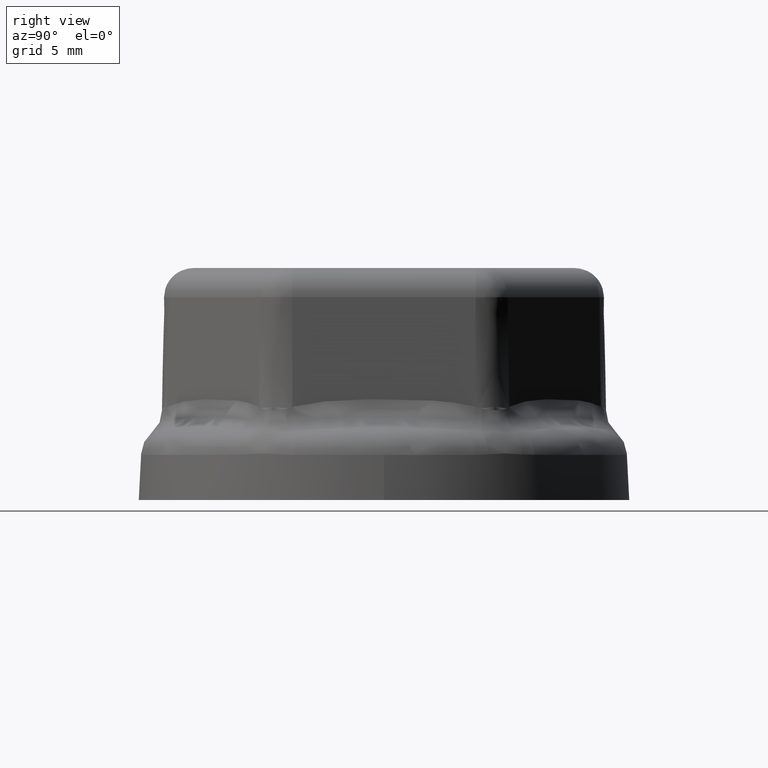
[diagram: clean part render]
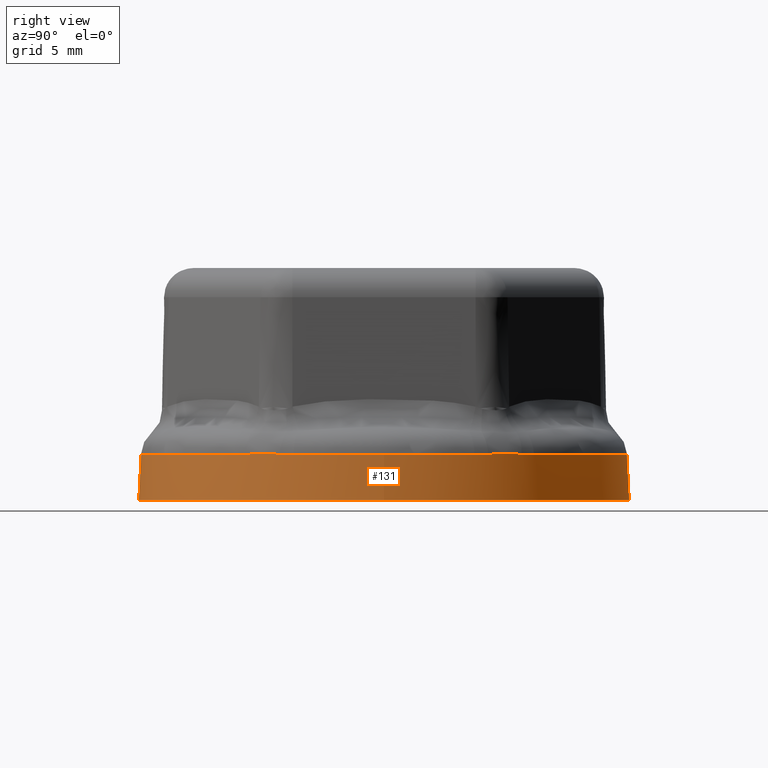
[diagram: same view with one face highlighted and labeled with its STEP entity id]
A machine part, right view. The second image highlights one B-rep face of the part: STEP entity #131.
In plain terms, the highlighted conical surface has half-angle 3 deg.
Its self-contained STEP definition (entity closure, byte-faithful):
#131 = ADVANCED_FACE( '', ( #320, #321 ), #322, .T. );
#320 = FACE_BOUND( '', #2273, .T. );
#321 = FACE_OUTER_BOUND( '', #2274, .T. );
#322 = CONICAL_SURFACE( '', #2275, 12.3652971144227, 0.0523598775598299 );
#2273 = EDGE_LOOP( '', ( #5702, #5703, #5704, #5705, #5706, #5707, #5708, #5709, #5710, #5711, #5712, #5713, #5714, #5715, #5716, #5717, #5718, #5719, #5720, #5721, #5722, #5723, #5724, #5725 ) );
#2274 = EDGE_LOOP( '', ( #5726 ) );
#2275 = AXIS2_PLACEMENT_3D( '', #5727, #5728, #5729 );
#5702 = ORIENTED_EDGE( '', *, *, #6277, .T. );
#5703 = ORIENTED_EDGE( '', *, *, #6278, .T. );
#5704 = ORIENTED_EDGE( '', *, *, #6279, .T. );
#5705 = ORIENTED_EDGE( '', *, *, #6280, .T. );
#5706 = ORIENTED_EDGE( '', *, *, #6281, .T. );
#5707 = ORIENTED_EDGE( '', *, *, #6282, .T. );
#5708 = ORIENTED_EDGE( '', *, *, #6283, .T. );
#5709 = ORIENTED_EDGE( '', *, *, #6284, .T. );
#5710 = ORIENTED_EDGE( '', *, *, #6285, .T. );
#5711 = ORIENTED_EDGE( '', *, *, #6264, .T. );
#5712 = ORIENTED_EDGE( '', *, *, #6276, .T. );
#5713 = ORIENTED_EDGE( '', *, *, #6286, .T. );
#5714 = ORIENTED_EDGE( '', *, *, #6287, .T. );
#5715 = ORIENTED_EDGE( '', *, *, #6288, .T. );
#5716 = ORIENTED_EDGE( '', *, *, #6273, .T. );
#5717 = ORIENTED_EDGE( '', *, *, #6289, .T. );
#5718 = ORIENTED_EDGE( '', *, *, #6290, .T. );
#5719 = ORIENTED_EDGE( '', *, *, #6291, .T. );
#5720 = ORIENTED_EDGE( '', *, *, #6292, .T. );
#5721 = ORIENTED_EDGE( '', *, *, #6293, .T. );
#5722 = ORIENTED_EDGE( '', *, *, #6294, .T. );
#5723 = ORIENTED_EDGE( '', *, *, #6295, .T. );
#5724 = ORIENTED_EDGE( '', *, *, #6296, .T. );
#5725 = ORIENTED_EDGE( '', *, *, #6297, .T. );
#5726 = ORIENTED_EDGE( '', *, *, #6298, .T. );
#5727 = CARTESIAN_POINT( '', ( 0.000000000000000, 0.000000000000000, 0.000000000000000 ) );
#5728 = DIRECTION( '', ( 0.000000000000000, 0.000000000000000, -1.00000000000000 ) );
#5729 = DIRECTION( '', ( 1.00000000000000, 0.000000000000000, 0.000000000000000 ) );
#6264 = EDGE_CURVE( '', #6677, #6675, #6678, .T. );
#6273 = EDGE_CURVE( '', #6689, #6691, #6693, .T. );
#6276 = EDGE_CURVE( '', #6675, #6696, #6698, .T. );
#6277 = EDGE_CURVE( '', #6699, #6700, #6701, .T. );
#6278 = EDGE_CURVE( '', #6700, #6702, #6703, .T. );
#6279 = EDGE_CURVE( '', #6702, #6704, #6705, .T. );
#6280 = EDGE_CURVE( '', #6704, #6706, #6707, .T. );
#6281 = EDGE_CURVE( '', #6706, #6708, #6709, .T. );
#6282 = EDGE_CURVE( '', #6708, #6710, #6711, .T. );
#6283 = EDGE_CURVE( '', #6710, #6712, #6713, .T. );
#6284 = EDGE_CURVE( '', #6712, #6714, #6715, .T. );
#6285 = EDGE_CURVE( '', #6714, #6677, #6716, .T. );
#6286 = EDGE_CURVE( '', #6696, #6717, #6718, .T. );
#6287 = EDGE_CURVE( '', #6717, #6719, #6720, .T. );
#6288 = EDGE_CURVE( '', #6719, #6689, #6721, .T. );
#6289 = EDGE_CURVE( '', #6691, #6722, #6723, .T. );
#6290 = EDGE_CURVE( '', #6722, #6724, #6725, .T. );
#6291 = EDGE_CURVE( '', #6724, #6726, #6727, .T. );
#6292 = EDGE_CURVE( '', #6726, #6728, #6729, .T. );
#6293 = EDGE_CURVE( '', #6728, #6730, #6731, .T. );
#6294 = EDGE_CURVE( '', #6730, #6732, #6733, .T. );
#6295 = EDGE_CURVE( '', #6732, #6734, #6735, .T. );
#6296 = EDGE_CURVE( '', #6734, #6736, #6737, .T. );
#6297 = EDGE_CURVE( '', #6736, #6699, #6738, .T. );
#6298 = EDGE_CURVE( '', #6739, #6739, #6740, .T. );
#6675 = VERTEX_POINT( '', #7895 );
#6677 = VERTEX_POINT( '', #7897 );
#6678 = B_SPLINE_CURVE_WITH_KNOTS( '', 3, ( #7898, #7899, #7900, #7901, #7902, #7903 ), .UNSPECIFIED., .F., .F., ( 4, 2, 4 ), ( 0.000000000000000, 0.000382240446810230, 0.000764480893620461 ), .UNSPECIFIED. );
#6689 = VERTEX_POINT( '', #7952 );
#6691 = VERTEX_POINT( '', #7954 );
#6693 = B_SPLINE_CURVE_WITH_KNOTS( '', 3, ( #7956, #7957, #7958, #7959, #7960, #7961, #7962, #7963, #7964, #7965, #7966, #7967, #7968, #7969, #7970, #7971, #7972 ), .UNSPECIFIED., .F., .F., ( 4, 2, 2, 2, 1, 2, 2, 2, 4 ), ( 0.000000000000000, 0.000242599445496883, 0.000485198890993766, 0.000727798336490649, 0.000970397781987532, 0.00121299722748441, 0.00145559667298130, 0.00169819611847818, 0.00194079556397506 ), .UNSPECIFIED. );
#6696 = VERTEX_POINT( '', #7993 );
#6698 = B_SPLINE_CURVE_WITH_KNOTS( '', 3, ( #7995, #7996, #7997, #7998, #7999, #8000, #8001, #8002, #8003, #8004, #8005, #8006, #8007, #8008, #8009, #8010, #8011 ), .UNSPECIFIED., .F., .F., ( 4, 2, 2, 2, 1, 2, 2, 2, 4 ), ( 0.000000000000000, 0.000242599445497159, 0.000485198890994317, 0.000727798336491475, 0.000970397781988634, 0.00121299722748579, 0.00145559667298295, 0.00169819611848011, 0.00194079556397727 ), .UNSPECIFIED. );
#6699 = VERTEX_POINT( '', #8012 );
#6700 = VERTEX_POINT( '', #8013 );
#6701 = CIRCLE( '', #8014, 12.2458857831350 );
#6702 = VERTEX_POINT( '', #8015 );
#6703 = B_SPLINE_CURVE_WITH_KNOTS( '', 3, ( #8016, #8017, #8018, #8019, #8020, #8021 ), .UNSPECIFIED., .F., .F., ( 4, 2, 4 ), ( 0.000000000000000, 0.000382240446810823, 0.000764480893621646 ), .UNSPECIFIED. );
#6704 = VERTEX_POINT( '', #8022 );
#6705 = B_SPLINE_CURVE_WITH_KNOTS( '', 3, ( #8023, #8024, #8025, #8026, #8027, #8028, #8029, #8030, #8031, #8032, #8033, #8034, #8035, #8036, #8037, #8038, #8039 ), .UNSPECIFIED., .F., .F., ( 4, 2, 2, 2, 1, 2, 2, 2, 4 ), ( 0.000000000000000, 0.000242599445496991, 0.000485198890993981, 0.000727798336490972, 0.000970397781987962, 0.00121299722748495, 0.00145559667298194, 0.00169819611847893, 0.00194079556397592 ), .UNSPECIFIED. );
#6706 = VERTEX_POINT( '', #8040 );
#6707 = B_SPLINE_CURVE_WITH_KNOTS( '', 3, ( #8041, #8042, #8043, #8044, #8045, #8046, #8047, #8048 ), .UNSPECIFIED., .F., .F., ( 4, 2, 2, 4 ), ( 0.000000000000000, 0.000191224081581414, 0.000382448163162828, 0.000764896326325653 ), .UNSPECIFIED. );
#6708 = VERTEX_POINT( '', #8049 );
#6709 = CIRCLE( '', #8050, 12.2458857831350 );
#6710 = VERTEX_POINT( '', #8051 );
#6711 = B_SPLINE_CURVE_WITH_KNOTS( '', 3, ( #8052, #8053, #8054, #8055, #8056, #8057 ), .UNSPECIFIED., .F., .F., ( 4, 2, 4 ), ( 0.000000000000000, 0.000382240446811210, 0.000764480893622419 ), .UNSPECIFIED. );
#6712 = VERTEX_POINT( '', #8058 );
#6713 = B_SPLINE_CURVE_WITH_KNOTS( '', 3, ( #8059, #8060, #8061, #8062, #8063, #8064, #8065, #8066, #8067, #8068, #8069, #8070, #8071, #8072, #8073, #8074, #8075 ), .UNSPECIFIED., .F., .F., ( 4, 2, 2, 2, 1, 2, 2, 2, 4 ), ( 0.000000000000000, 0.000242599445496902, 0.000485198890993805, 0.000727798336490707, 0.000970397781987609, 0.00121299722748451, 0.00145559667298141, 0.00169819611847832, 0.00194079556397522 ), .UNSPECIFIED. );
#6714 = VERTEX_POINT( '', #8076 );
#6715 = B_SPLINE_CURVE_WITH_KNOTS( '', 3, ( #8077, #8078, #8079, #8080, #8081, #8082, #8083, #8084 ), .UNSPECIFIED., .F., .F., ( 4, 2, 2, 4 ), ( 0.000000000000000, 0.000191224081581397, 0.000382448163162794, 0.000764896326325594 ), .UNSPECIFIED. );
#6716 = CIRCLE( '', #8085, 12.2458857831350 );
#6717 = VERTEX_POINT( '', #8086 );
#6718 = B_SPLINE_CURVE_WITH_KNOTS( '', 3, ( #8087, #8088, #8089, #8090, #8091, #8092, #8093, #8094 ), .UNSPECIFIED., .F., .F., ( 4, 2, 2, 4 ), ( 0.000000000000000, 0.000191224081581387, 0.000382448163162774, 0.000764896326325548 ), .UNSPECIFIED. );
#6719 = VERTEX_POINT( '', #8095 );
#6720 = CIRCLE( '', #8096, 12.2458857831350 );
#6721 = B_SPLINE_CURVE_WITH_KNOTS( '', 3, ( #8097, #8098, #8099, #8100, #8101, #8102 ), .UNSPECIFIED., .F., .F., ( 4, 2, 4 ), ( 0.000000000000000, 0.000382240446811213, 0.000764480893622426 ), .UNSPECIFIED. );
#6722 = VERTEX_POINT( '', #8103 );
#6723 = B_SPLINE_CURVE_WITH_KNOTS( '', 3, ( #8104, #8105, #8106, #8107, #8108, #8109, #8110, #8111 ), .UNSPECIFIED., .F., .F., ( 4, 2, 2, 4 ), ( 0.000000000000000, 0.000191224081581448, 0.000382448163162897, 0.000764896326325796 ), .UNSPECIFIED. );
#6724 = VERTEX_POINT( '', #8112 );
#6725 = CIRCLE( '', #8113, 12.2458857831350 );
#6726 = VERTEX_POINT( '', #8114 );
#6727 = B_SPLINE_CURVE_WITH_KNOTS( '', 3, ( #8115, #8116, #8117, #8118, #8119, #8120 ), .UNSPECIFIED., .F., .F., ( 4, 2, 4 ), ( 0.000000000000000, 0.000382240446811016, 0.000764480893622032 ), .UNSPECIFIED. );
#6728 = VERTEX_POINT( '', #8121 );
#6729 = B_SPLINE_CURVE_WITH_KNOTS( '', 3, ( #8122, #8123, #8124, #8125, #8126, #8127, #8128, #8129, #8130, #8131, #8132, #8133, #8134, #8135, #8136, #8137, #8138 ), .UNSPECIFIED., .F., .F., ( 4, 2, 2, 2, 1, 2, 2, 2, 4 ), ( 0.000000000000000, 0.000242599445496940, 0.000485198890993881, 0.000727798336490821, 0.000970397781987761, 0.00121299722748470, 0.00145559667298164, 0.00169819611847858, 0.00194079556397552 ), .UNSPECIFIED. );
#6730 = VERTEX_POINT( '', #8139 );
#6731 = B_SPLINE_CURVE_WITH_KNOTS( '', 3, ( #8140, #8141, #8142, #8143, #8144, #8145, #8146, #8147 ), .UNSPECIFIED., .F., .F., ( 4, 2, 2, 4 ), ( 0.000000000000000, 0.000191224081581433, 0.000382448163162865, 0.000764896326325727 ), .UNSPECIFIED. );
#6732 = VERTEX_POINT( '', #8148 );
#6733 = CIRCLE( '', #8149, 12.2458857831350 );
#6734 = VERTEX_POINT( '', #8150 );
#6735 = B_SPLINE_CURVE_WITH_KNOTS( '', 3, ( #8151, #8152, #8153, #8154, #8155, #8156 ), .UNSPECIFIED., .F., .F., ( 4, 2, 4 ), ( 0.000000000000000, 0.000382240446810624, 0.000764480893621248 ), .UNSPECIFIED. );
#6736 = VERTEX_POINT( '', #8157 );
#6737 = B_SPLINE_CURVE_WITH_KNOTS( '', 3, ( #8158, #8159, #8160, #8161, #8162, #8163, #8164, #8165, #8166, #8167, #8168, #8169, #8170, #8171, #8172, #8173, #8174 ), .UNSPECIFIED., .F., .F., ( 4, 2, 2, 2, 1, 2, 2, 2, 4 ), ( 0.000000000000000, 0.000242599445497063, 0.000485198890994125, 0.000727798336491188, 0.000970397781988251, 0.00121299722748531, 0.00145559667298238, 0.00169819611847944, 0.00194079556397650 ), .UNSPECIFIED. );
#6738 = B_SPLINE_CURVE_WITH_KNOTS( '', 3, ( #8175, #8176, #8177, #8178, #8179, #8180, #8181, #8182 ), .UNSPECIFIED., .F., .F., ( 4, 2, 2, 4 ), ( 0.000000000000000, 0.000191224081581383, 0.000382448163162767, 0.000764896326325533 ), .UNSPECIFIED. );
#6739 = VERTEX_POINT( '', #8183 );
#6740 = CIRCLE( '', #8184, 12.3652971144227 );
#7895 = CARTESIAN_POINT( '', ( 0.970397783726895, -12.2060850970694, 2.30307234693433 ) );
#7897 = CARTESIAN_POINT( '', ( 1.72996133434143, -12.1230752037291, 2.27850393436441 ) );
#7898 = CARTESIAN_POINT( '', ( 1.72996133434143, -12.1230752037291, 2.27850393436441 ) );
#7899 = CARTESIAN_POINT( '', ( 1.60369217465793, -12.1410937972214, 2.27850393436442 ) );
#7900 = CARTESIAN_POINT( '', ( 1.47725177163524, -12.1570325384955, 2.28023697720637 ) );
#7901 = CARTESIAN_POINT( '', ( 1.22405449743470, -12.1847170284477, 2.28808601563968 ) );
#7902 = CARTESIAN_POINT( '', ( 1.09729752388611, -12.1964629550953, 2.29419836516929 ) );
#7903 = CARTESIAN_POINT( '', ( 0.970397779880525, -12.2060850973610, 2.30307234720331 ) );
#7952 = CARTESIAN_POINT( '', ( -10.0855808829544, -6.94343168101671, 2.30307234693447 ) );
#7954 = CARTESIAN_POINT( '', ( -11.0559786651701, -5.26265341919389, 2.30307234717746 ) );
#7956 = CARTESIAN_POINT( '', ( -10.0855808829544, -6.94343168101671, 2.30307234693447 ) );
#7957 = CARTESIAN_POINT( '', ( -10.1313243157113, -6.87646509412377, 2.30872726524088 ) );
#7958 = CARTESIAN_POINT( '', ( -10.1763483262438, -6.80908314861595, 2.31481177655399 ) );
#7959 = CARTESIAN_POINT( '', ( -10.2650233237330, -6.67352654206921, 2.32651434985899 ) );
#7960 = CARTESIAN_POINT( '', ( -10.3086746322046, -6.60535206665708, 2.33212512571195 ) );
#7961 = CARTESIAN_POINT( '', ( -10.3946626097138, -6.46824410840162, 2.34167594635807 ) );
#7962 = CARTESIAN_POINT( '', ( -10.4369995935141, -6.39931080728672, 2.34560886820252 ) );
#7963 = CARTESIAN_POINT( '', ( -10.5203994019893, -6.26070856894294, 2.35095806456817 ) );
#7964 = CARTESIAN_POINT( '', ( -10.6025254268497, -6.12137091128633, 2.35378211098088 ) );
#7965 = CARTESIAN_POINT( '', ( -10.6821323656900, -5.98057885863804, 2.35095806464757 ) );
#7966 = CARTESIAN_POINT( '', ( -10.7604655209159, -5.83905138667716, 2.34560886835284 ) );
#7967 = CARTESIAN_POINT( '', ( -10.7989950189664, -5.76791983263985, 2.34167594653957 ) );
#7968 = CARTESIAN_POINT( '', ( -10.8747400051595, -5.62489808059130, 2.33212512594067 ) );
#7969 = CARTESIAN_POINT( '', ( -10.9119551785394, -5.55300770085164, 2.32651435010372 ) );
#7970 = CARTESIAN_POINT( '', ( -10.9850131447541, -5.40843459709535, 2.31481177681200 ) );
#7971 = CARTESIAN_POINT( '', ( -11.0208556177666, -5.33575168399014, 2.30872726521161 ) );
#7972 = CARTESIAN_POINT( '', ( -11.0559786668398, -5.26265341571890, 2.30307234690863 ) );
#7993 = CARTESIAN_POINT( '', ( -0.970397780250372, -12.2060850973330, 2.30307234717744 ) );
#7995 = CARTESIAN_POINT( '', ( 0.970397783726895, -12.2060850970694, 2.30307234693433 ) );
#7996 = CARTESIAN_POINT( '', ( 0.889531301894346, -12.2122167784467, 2.30872726524067 ) );
#7997 = CARTESIAN_POINT( '', ( 0.808664820061802, -12.2175177425942, 2.31481177655370 ) );
#7998 = CARTESIAN_POINT( '', ( 0.646931856396743, -12.2265342398271, 2.32651434985860 ) );
#7999 = CARTESIAN_POINT( '', ( 0.566065374564229, -12.2302501441659, 2.33212512571153 ) );
#8000 = CARTESIAN_POINT( '', ( 0.404332410899244, -12.2361639379812, 2.34167594635765 ) );
#8001 = CARTESIAN_POINT( '', ( 0.323465929066773, -12.2383621909144, 2.34560886820211 ) );
#8002 = CARTESIAN_POINT( '', ( 0.161732965401888, -12.2412874245528, 2.35095806456780 ) );
#8003 = CARTESIAN_POINT( '', ( 1.73705670615705E-009, -12.2427418195654, 2.35378211098054 ) );
#8004 = CARTESIAN_POINT( '', ( -0.161732961927657, -12.2412874245945, 2.35095806464724 ) );
#8005 = CARTESIAN_POINT( '', ( -0.323465925592316, -12.2383621909983, 2.34560886835251 ) );
#8006 = CARTESIAN_POINT( '', ( -0.404332407424618, -12.2361639380864, 2.34167594653924 ) );
#8007 = CARTESIAN_POINT( '', ( -0.566065371089177, -12.2302501443147, 2.33212512594037 ) );
#8008 = CARTESIAN_POINT( '', ( -0.646931852921435, -12.2265342399981, 2.32651435010346 ) );
#8009 = CARTESIAN_POINT( '', ( -0.808664816585921, -12.2175177428107, 2.31481177681183 ) );
#8010 = CARTESIAN_POINT( '', ( -0.889531302264346, -12.2122167784213, 2.30872726521138 ) );
#8011 = CARTESIAN_POINT( '', ( -0.970397784096568, -12.2060850970414, 2.30307234690848 ) );
#8012 = CARTESIAN_POINT( '', ( 1.72996133434143, 12.1230752037291, 2.27850393436441 ) );
#8013 = CARTESIAN_POINT( '', ( 9.63391043124788, 7.55972806496905, 2.27850393436441 ) );
#8014 = AXIS2_PLACEMENT_3D( '', #9445, #9446, #9447 );
#8015 = CARTESIAN_POINT( '', ( 10.0855808829540, 6.94343168101733, 2.30307234693442 ) );
#8016 = CARTESIAN_POINT( '', ( 9.63391043124788, 7.55972806496905, 2.27850393436441 ) );
#8017 = CARTESIAN_POINT( '', ( 9.71264957079453, 7.45938506171460, 2.27850393436441 ) );
#8018 = CARTESIAN_POINT( '', ( 9.78967312715373, 7.35785383126911, 2.28023697720637 ) );
#8019 = CARTESIAN_POINT( '', ( 9.94024723584361, 7.15242080461823, 2.28808601563971 ) );
#8020 = CARTESIAN_POINT( '', ( 10.0137979934852, 7.04851900874297, 2.29419836516928 ) );
#8021 = CARTESIAN_POINT( '', ( 10.0855808851290, 6.94343167783309, 2.30307234720331 ) );
#8022 = CARTESIAN_POINT( '', ( 11.0559786651702, 5.26265341919380, 2.30307234717745 ) );
#8023 = CARTESIAN_POINT( '', ( 10.0855808829540, 6.94343168101733, 2.30307234693442 ) );
#8024 = CARTESIAN_POINT( '', ( 10.1313243157109, 6.87646509412436, 2.30872726524080 ) );
#8025 = CARTESIAN_POINT( '', ( 10.1763483262434, 6.80908314861652, 2.31481177655387 ) );
#8026 = CARTESIAN_POINT( '', ( 10.2650233237326, 6.67352654206973, 2.32651434985883 ) );
#8027 = CARTESIAN_POINT( '', ( 10.3086746322043, 6.60535206665756, 2.33212512571178 ) );
#8028 = CARTESIAN_POINT( '', ( 10.3946626097135, 6.46824410840206, 2.34167594635790 ) );
#8029 = CARTESIAN_POINT( '', ( 10.4369995935138, 6.39931080728713, 2.34560886820236 ) );
#8030 = CARTESIAN_POINT( '', ( 10.5203994019891, 6.26070856894328, 2.35095806456805 ) );
#8031 = CARTESIAN_POINT( '', ( 10.6025254268495, 6.12137091128661, 2.35378211098081 ) );
#8032 = CARTESIAN_POINT( '', ( 10.6821323656899, 5.98057885863826, 2.35095806464755 ) );
#8033 = CARTESIAN_POINT( '', ( 10.7604655209158, 5.83905138667732, 2.34560886835284 ) );
#8034 = CARTESIAN_POINT( '', ( 10.7989950189663, 5.76791983263997, 2.34167594653958 ) );
#8035 = CARTESIAN_POINT( '', ( 10.8747400051595, 5.62489808059136, 2.33212512594067 ) );
#8036 = CARTESIAN_POINT( '', ( 10.9119551785393, 5.55300770085168, 2.32651435010372 ) );
#8037 = CARTESIAN_POINT( '', ( 10.9850131447542, 5.40843459709532, 2.31481177681199 ) );
#8038 = CARTESIAN_POINT( '', ( 11.0208556177667, 5.33575168399009, 2.30872726521161 ) );
#8039 = CARTESIAN_POINT( '', ( 11.0559786668399, 5.26265341571881, 2.30307234690863 ) );
#8040 = CARTESIAN_POINT( '', ( 11.3638717655893, 4.56334713876007, 2.27850393436441 ) );
#8041 = CARTESIAN_POINT( '', ( 11.0559786651702, 5.26265341919380, 2.30307234717745 ) );
#8042 = CARTESIAN_POINT( '', ( 11.0835211878969, 5.20533178095095, 2.29863791666767 ) );
#8043 = CARTESIAN_POINT( '', ( 11.1105991648573, 5.14774924262990, 2.29489340032504 ) );
#8044 = CARTESIAN_POINT( '', ( 11.1638264215241, 5.03207193526243, 2.28863523996036 ) );
#8045 = CARTESIAN_POINT( '', ( 11.1899709404237, 4.97398700562193, 2.28612247949091 ) );
#8046 = CARTESIAN_POINT( '', ( 11.2669543741825, 4.79911047851302, 2.28023522397837 ) );
#8047 = CARTESIAN_POINT( '', ( 11.3163630319697, 4.68165572677290, 2.27850393436442 ) );
#8048 = CARTESIAN_POINT( '', ( 11.3638717655893, 4.56334713876007, 2.27850393436442 ) );
#8049 = CARTESIAN_POINT( '', ( 11.3638717655893, -4.56334713876008, 2.27850393436441 ) );
#8050 = AXIS2_PLACEMENT_3D( '', #9448, #9449, #9450 );
#8051 = CARTESIAN_POINT( '', ( 11.0559786666793, -5.26265341605290, 2.30307234693447 ) );
#8052 = CARTESIAN_POINT( '', ( 11.3638717655893, -4.56334713876008, 2.27850393436441 ) );
#8053 = CARTESIAN_POINT( '', ( 11.3163417454522, -4.68170873550695, 2.27850393436441 ) );
#8054 = CARTESIAN_POINT( '', ( 11.2669248987885, -4.79917870722671, 2.28023697720637 ) );
#8055 = CARTESIAN_POINT( '', ( 11.1643017332773, -5.03229622383001, 2.28808601563973 ) );
#8056 = CARTESIAN_POINT( '', ( 11.1110955173716, -5.14794394635224, 2.29419836516927 ) );
#8057 = CARTESIAN_POINT( '', ( 11.0559786650096, -5.26265341952797, 2.30307234720330 ) );
#8058 = CARTESIAN_POINT( '', ( 10.0855808849199, -6.94343167813931, 2.30307234717745 ) );
#8059 = CARTESIAN_POINT( '', ( 11.0559786666793, -5.26265341605290, 2.30307234693447 ) );
#8060 = CARTESIAN_POINT( '', ( 11.0208556176037, -5.33575168432312, 2.30872726524089 ) );
#8061 = CARTESIAN_POINT( '', ( 10.9850131463038, -5.40843459397847, 2.31481177655399 ) );
#8062 = CARTESIAN_POINT( '', ( 10.9119551801281, -5.55300769775799, 2.32651434985900 ) );
#8063 = CARTESIAN_POINT( '', ( 10.8747400067673, -5.62489807750896, 2.33212512571196 ) );
#8064 = CARTESIAN_POINT( '', ( 10.7989950206117, -5.76791982957965, 2.34167594635808 ) );
#8065 = CARTESIAN_POINT( '', ( 10.7604655225796, -5.83905138362778, 2.34560886820252 ) );
#8066 = CARTESIAN_POINT( '', ( 10.6821323673901, -5.98057885560996, 2.35095806456816 ) );
#8067 = CARTESIAN_POINT( '', ( 10.6025254285858, -6.12137090827922, 2.35378211098084 ) );
#8068 = CARTESIAN_POINT( '', ( 10.5203994037616, -6.26070856595660, 2.35095806464751 ) );
#8069 = CARTESIAN_POINT( '', ( 10.4369995953230, -6.39931080432129, 2.34560886835275 ) );
#8070 = CARTESIAN_POINT( '', ( 10.3946626115413, -6.46824410544672, 2.34167594653948 ) );
#8071 = CARTESIAN_POINT( '', ( 10.3086746340701, -6.60535206372357, 2.33212512594058 ) );
#8072 = CARTESIAN_POINT( '', ( 10.2650233256177, -6.67352653914658, 2.32651435010364 ) );
#8073 = CARTESIAN_POINT( '', ( 10.1763483281682, -6.80908314571556, 2.31481177681194 ) );
#8074 = CARTESIAN_POINT( '', ( 10.1313243155040, -6.87646509443180, 2.30872726521155 ) );
#8075 = CARTESIAN_POINT( '', ( 10.0855808827451, -6.94343168132315, 2.30307234690859 ) );
#8076 = CARTESIAN_POINT( '', ( 9.63391043124787, -7.55972806496906, 2.27850393436441 ) );
#8077 = CARTESIAN_POINT( '', ( 10.0855808849199, -6.94343167813931, 2.30307234717745 ) );
#8078 = CARTESIAN_POINT( '', ( 10.0497101513784, -6.99594502162640, 2.29863791666766 ) );
#8079 = CARTESIAN_POINT( '', ( 10.0133811988582, -7.04818650671770, 2.29489340032504 ) );
#8080 = CARTESIAN_POINT( '', ( 9.93981534036997, -7.15212131684863, 2.28863523996036 ) );
#8081 = CARTESIAN_POINT( '', ( 9.90258457517406, -7.20380559920565, 2.28612247949091 ) );
#8082 = CARTESIAN_POINT( '', ( 9.78962877705156, -7.35791347206577, 2.28023522397837 ) );
#8083 = CARTESIAN_POINT( '', ( 9.71261430714302, -7.45943000074642, 2.27850393436442 ) );
#8084 = CARTESIAN_POINT( '', ( 9.63391043124787, -7.55972806496906, 2.27850393436442 ) );
#8085 = AXIS2_PLACEMENT_3D( '', #9451, #9452, #9453 );
#8086 = CARTESIAN_POINT( '', ( -1.72996133434145, -12.1230752037291, 2.27850393436441 ) );
#8087 = CARTESIAN_POINT( '', ( -0.970397780250372, -12.2060850973330, 2.30307234717744 ) );
#8088 = CARTESIAN_POINT( '', ( -1.03381103651858, -12.2012768025772, 2.29863791666766 ) );
#8089 = CARTESIAN_POINT( '', ( -1.09721796599919, -12.1959357493475, 2.29489340032504 ) );
#8090 = CARTESIAN_POINT( '', ( -1.22401108115418, -12.1841932521110, 2.28863523996036 ) );
#8091 = CARTESIAN_POINT( '', ( -1.28738636524967, -12.1777926048275, 2.28612247949091 ) );
#8092 = CARTESIAN_POINT( '', ( -1.47732559713096, -12.1570239505787, 2.28023522397837 ) );
#8093 = CARTESIAN_POINT( '', ( -1.60374872482668, -12.1410857275193, 2.27850393436442 ) );
#8094 = CARTESIAN_POINT( '', ( -1.72996133434145, -12.1230752037291, 2.27850393436442 ) );
#8095 = CARTESIAN_POINT( '', ( -9.63391043124787, -7.55972806496907, 2.27850393436441 ) );
#8096 = AXIS2_PLACEMENT_3D( '', #9454, #9455, #9456 );
#8097 = CARTESIAN_POINT( '', ( -9.63391043124787, -7.55972806496907, 2.27850393436441 ) );
#8098 = CARTESIAN_POINT( '', ( -9.71264957079460, -7.45938506171452, 2.27850393436441 ) );
#8099 = CARTESIAN_POINT( '', ( -9.78967312715388, -7.35785383126892, 2.28023697720637 ) );
#8100 = CARTESIAN_POINT( '', ( -9.94024723584390, -7.15242080461783, 2.28808601563973 ) );
#8101 = CARTESIAN_POINT( '', ( -10.0137979934851, -7.04851900874306, 2.29419836516927 ) );
#8102 = CARTESIAN_POINT( '', ( -10.0855808851291, -6.94343167783308, 2.30307234720331 ) );
#8103 = CARTESIAN_POINT( '', ( -11.3638717655893, -4.56334713876004, 2.27850393436441 ) );
#8104 = CARTESIAN_POINT( '', ( -11.0559786651701, -5.26265341919389, 2.30307234717746 ) );
#8105 = CARTESIAN_POINT( '', ( -11.0835211878969, -5.20533178095103, 2.29863791666768 ) );
#8106 = CARTESIAN_POINT( '', ( -11.1105991648572, -5.14774924262998, 2.29489340032505 ) );
#8107 = CARTESIAN_POINT( '', ( -11.1638264215240, -5.03207193526248, 2.28863523996037 ) );
#8108 = CARTESIAN_POINT( '', ( -11.1899709404236, -4.97398700562197, 2.28612247949091 ) );
#8109 = CARTESIAN_POINT( '', ( -11.2669543741825, -4.79911047851303, 2.28023522397837 ) );
#8110 = CARTESIAN_POINT( '', ( -11.3163630319697, -4.68165572677289, 2.27850393436442 ) );
#8111 = CARTESIAN_POINT( '', ( -11.3638717655893, -4.56334713876004, 2.27850393436442 ) );
#8112 = CARTESIAN_POINT( '', ( -11.3638717655893, 4.56334713876004, 2.27850393436441 ) );
#8113 = AXIS2_PLACEMENT_3D( '', #9457, #9458, #9459 );
#8114 = CARTESIAN_POINT( '', ( -11.0559786666795, 5.26265341605251, 2.30307234693444 ) );
#8115 = CARTESIAN_POINT( '', ( -11.3638717655893, 4.56334713876004, 2.27850393436441 ) );
#8116 = CARTESIAN_POINT( '', ( -11.3163417454522, 4.68170873550685, 2.27850393436441 ) );
#8117 = CARTESIAN_POINT( '', ( -11.2669248987885, 4.79917870722654, 2.28023697720637 ) );
#8118 = CARTESIAN_POINT( '', ( -11.1643017332774, 5.03229622382974, 2.28808601563972 ) );
#8119 = CARTESIAN_POINT( '', ( -11.1110955173715, 5.14794394635229, 2.29419836516927 ) );
#8120 = CARTESIAN_POINT( '', ( -11.0559786650096, 5.26265341952797, 2.30307234720331 ) );
#8121 = CARTESIAN_POINT( '', ( -10.0855808849199, 6.94343167813921, 2.30307234717746 ) );
#8122 = CARTESIAN_POINT( '', ( -11.0559786666795, 5.26265341605251, 2.30307234693444 ) );
#8123 = CARTESIAN_POINT( '', ( -11.0208556176039, 5.33575168432275, 2.30872726524084 ) );
#8124 = CARTESIAN_POINT( '', ( -10.9850131463040, 5.40843459397811, 2.31481177655394 ) );
#8125 = CARTESIAN_POINT( '', ( -10.9119551801283, 5.55300769775765, 2.32651434985892 ) );
#8126 = CARTESIAN_POINT( '', ( -10.8747400067675, 5.62489807750864, 2.33212512571188 ) );
#8127 = CARTESIAN_POINT( '', ( -10.7989950206118, 5.76791982957935, 2.34167594635801 ) );
#8128 = CARTESIAN_POINT( '', ( -10.7604655225797, 5.83905138362749, 2.34560886820245 ) );
#8129 = CARTESIAN_POINT( '', ( -10.6821323673902, 5.98057885560970, 2.35095806456812 ) );
#8130 = CARTESIAN_POINT( '', ( -10.6025254285860, 6.12137090827897, 2.35378211098085 ) );
#8131 = CARTESIAN_POINT( '', ( -10.5203994037617, 6.26070856595638, 2.35095806464756 ) );
#8132 = CARTESIAN_POINT( '', ( -10.4369995953232, 6.39931080432110, 2.34560886835283 ) );
#8133 = CARTESIAN_POINT( '', ( -10.3946626115414, 6.46824410544653, 2.34167594653957 ) );
#8134 = CARTESIAN_POINT( '', ( -10.3086746340702, 6.60535206372341, 2.33212512594066 ) );
#8135 = CARTESIAN_POINT( '', ( -10.2650233256178, 6.67352653914643, 2.32651435010372 ) );
#8136 = CARTESIAN_POINT( '', ( -10.1763483281683, 6.80908314571543, 2.31481177681199 ) );
#8137 = CARTESIAN_POINT( '', ( -10.1313243155043, 6.87646509443136, 2.30872726521160 ) );
#8138 = CARTESIAN_POINT( '', ( -10.0855808827454, 6.94343168132273, 2.30307234690863 ) );
#8139 = CARTESIAN_POINT( '', ( -9.63391043124787, 7.55972806496907, 2.27850393436441 ) );
#8140 = CARTESIAN_POINT( '', ( -10.0855808849199, 6.94343167813921, 2.30307234717746 ) );
#8141 = CARTESIAN_POINT( '', ( -10.0497101513785, 6.99594502162631, 2.29863791666767 ) );
#8142 = CARTESIAN_POINT( '', ( -10.0133811988582, 7.04818650671762, 2.29489340032504 ) );
#8143 = CARTESIAN_POINT( '', ( -9.93981534037001, 7.15212131684856, 2.28863523996036 ) );
#8144 = CARTESIAN_POINT( '', ( -9.90258457517410, 7.20380559920559, 2.28612247949091 ) );
#8145 = CARTESIAN_POINT( '', ( -9.78962877705159, 7.35791347206574, 2.28023522397837 ) );
#8146 = CARTESIAN_POINT( '', ( -9.71261430714304, 7.45943000074641, 2.27850393436442 ) );
#8147 = CARTESIAN_POINT( '', ( -9.63391043124787, 7.55972806496906, 2.27850393436442 ) );
#8148 = CARTESIAN_POINT( '', ( -1.72996133434146, 12.1230752037291, 2.27850393436441 ) );
#8149 = AXIS2_PLACEMENT_3D( '', #9460, #9461, #9462 );
#8150 = CARTESIAN_POINT( '', ( -0.970397783726135, 12.2060850970695, 2.30307234693439 ) );
#8151 = CARTESIAN_POINT( '', ( -1.72996133434146, 12.1230752037291, 2.27850393436441 ) );
#8152 = CARTESIAN_POINT( '', ( -1.60369217465782, 12.1410937972214, 2.27850393436442 ) );
#8153 = CARTESIAN_POINT( '', ( -1.47725177163500, 12.1570325384955, 2.28023697720637 ) );
#8154 = CARTESIAN_POINT( '', ( -1.22405449743420, 12.1847170284477, 2.28808601563970 ) );
#8155 = CARTESIAN_POINT( '', ( -1.09729752388625, 12.1964629550953, 2.29419836516928 ) );
#8156 = CARTESIAN_POINT( '', ( -0.970397779880538, 12.2060850973610, 2.30307234720331 ) );
#8157 = CARTESIAN_POINT( '', ( 0.970397780250366, 12.2060850973330, 2.30307234717744 ) );
#8158 = CARTESIAN_POINT( '', ( -0.970397783726135, 12.2060850970695, 2.30307234693439 ) );
#8159 = CARTESIAN_POINT( '', ( -0.889531301893617, 12.2122167784468, 2.30872726524075 ) );
#8160 = CARTESIAN_POINT( '', ( -0.808664820061105, 12.2175177425943, 2.31481177655382 ) );
#8161 = CARTESIAN_POINT( '', ( -0.646931856396109, 12.2265342398271, 2.32651434985876 ) );
#8162 = CARTESIAN_POINT( '', ( -0.566065374563626, 12.2302501441659, 2.33212512571171 ) );
#8163 = CARTESIAN_POINT( '', ( -0.404332410898705, 12.2361639379812, 2.34167594635782 ) );
#8164 = CARTESIAN_POINT( '', ( -0.323465929066266, 12.2383621909144, 2.34560886820227 ) );
#8165 = CARTESIAN_POINT( '', ( -0.161732965401444, 12.2412874245528, 2.35095806456791 ) );
#8166 = CARTESIAN_POINT( '', ( -1.73667661198043E-009, 12.2427418195654, 2.35378211098061 ) );
#8167 = CARTESIAN_POINT( '', ( 0.161732961927973, 12.2412874245945, 2.35095806464726 ) );
#8168 = CARTESIAN_POINT( '', ( 0.323465925592568, 12.2383621909983, 2.34560886835249 ) );
#8169 = CARTESIAN_POINT( '', ( 0.404332407424838, 12.2361639380864, 2.34167594653922 ) );
#8170 = CARTESIAN_POINT( '', ( 0.566065371089333, 12.2302501443147, 2.33212512594034 ) );
#8171 = CARTESIAN_POINT( '', ( 0.646931852921559, 12.2265342399981, 2.32651435010343 ) );
#8172 = CARTESIAN_POINT( '', ( 0.808664816585981, 12.2175177428107, 2.31481177681182 ) );
#8173 = CARTESIAN_POINT( '', ( 0.889531302264415, 12.2122167784213, 2.30872726521137 ) );
#8174 = CARTESIAN_POINT( '', ( 0.970397784096605, 12.2060850970414, 2.30307234690848 ) );
#8175 = CARTESIAN_POINT( '', ( 0.970397780250366, 12.2060850973330, 2.30307234717744 ) );
#8176 = CARTESIAN_POINT( '', ( 1.03381103651858, 12.2012768025772, 2.29863791666766 ) );
#8177 = CARTESIAN_POINT( '', ( 1.09721796599918, 12.1959357493475, 2.29489340032504 ) );
#8178 = CARTESIAN_POINT( '', ( 1.22401108115417, 12.1841932521110, 2.28863523996036 ) );
#8179 = CARTESIAN_POINT( '', ( 1.28738636524966, 12.1777926048275, 2.28612247949091 ) );
#8180 = CARTESIAN_POINT( '', ( 1.47732559713094, 12.1570239505787, 2.28023522397837 ) );
#8181 = CARTESIAN_POINT( '', ( 1.60374872482666, 12.1410857275193, 2.27850393436442 ) );
#8182 = CARTESIAN_POINT( '', ( 1.72996133434143, 12.1230752037291, 2.27850393436442 ) );
#8183 = CARTESIAN_POINT( '', ( 12.3652971144227, 0.000000000000000, 0.000000000000000 ) );
#8184 = AXIS2_PLACEMENT_3D( '', #9463, #9464, #9465 );
#9445 = CARTESIAN_POINT( '', ( 0.000000000000000, 0.000000000000000, 2.27850393436441 ) );
#9446 = DIRECTION( '', ( 0.000000000000000, 0.000000000000000, -1.00000000000000 ) );
#9447 = DIRECTION( '', ( -1.00000000000000, 0.000000000000000, 0.000000000000000 ) );
#9448 = CARTESIAN_POINT( '', ( 0.000000000000000, 0.000000000000000, 2.27850393436441 ) );
#9449 = DIRECTION( '', ( 0.000000000000000, 0.000000000000000, -1.00000000000000 ) );
#9450 = DIRECTION( '', ( -1.00000000000000, 0.000000000000000, 0.000000000000000 ) );
#9451 = CARTESIAN_POINT( '', ( 0.000000000000000, 0.000000000000000, 2.27850393436441 ) );
#9452 = DIRECTION( '', ( 0.000000000000000, 0.000000000000000, -1.00000000000000 ) );
#9453 = DIRECTION( '', ( -1.00000000000000, 0.000000000000000, 0.000000000000000 ) );
#9454 = CARTESIAN_POINT( '', ( 0.000000000000000, 0.000000000000000, 2.27850393436441 ) );
#9455 = DIRECTION( '', ( 0.000000000000000, 0.000000000000000, -1.00000000000000 ) );
#9456 = DIRECTION( '', ( -1.00000000000000, 0.000000000000000, 0.000000000000000 ) );
#9457 = CARTESIAN_POINT( '', ( 0.000000000000000, 0.000000000000000, 2.27850393436441 ) );
#9458 = DIRECTION( '', ( 0.000000000000000, 0.000000000000000, -1.00000000000000 ) );
#9459 = DIRECTION( '', ( -1.00000000000000, 0.000000000000000, 0.000000000000000 ) );
#9460 = CARTESIAN_POINT( '', ( 0.000000000000000, 0.000000000000000, 2.27850393436441 ) );
#9461 = DIRECTION( '', ( 0.000000000000000, 0.000000000000000, -1.00000000000000 ) );
#9462 = DIRECTION( '', ( -1.00000000000000, 0.000000000000000, 0.000000000000000 ) );
#9463 = CARTESIAN_POINT( '', ( 0.000000000000000, 0.000000000000000, 0.000000000000000 ) );
#9464 = DIRECTION( '', ( 0.000000000000000, 0.000000000000000, 1.00000000000000 ) );
#9465 = DIRECTION( '', ( 1.00000000000000, 0.000000000000000, 0.000000000000000 ) );